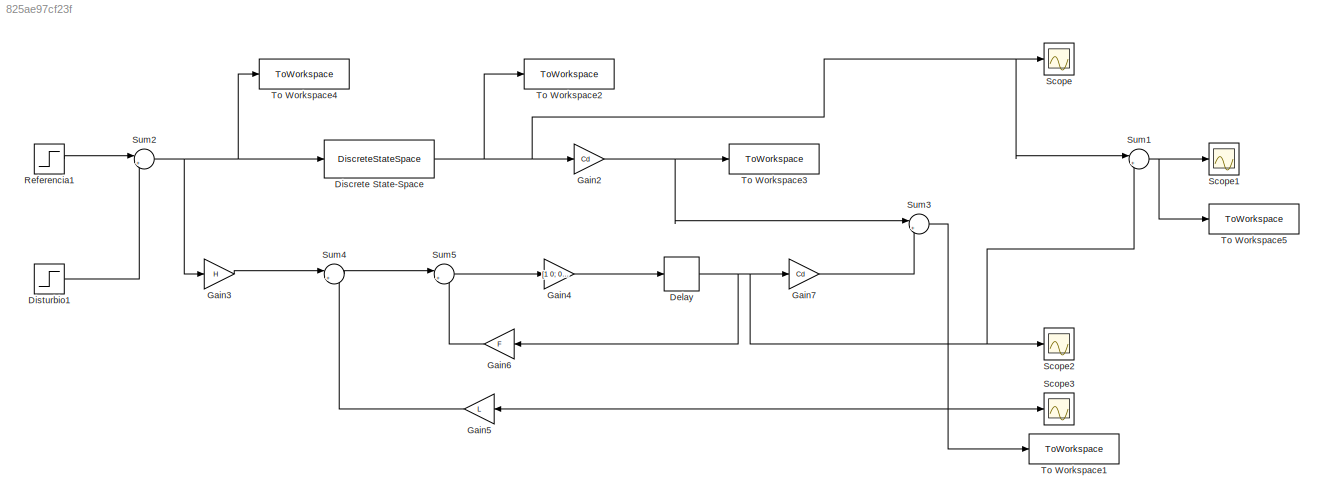
MODEL slx_825ae97cf23f
KIND model
CONFIG AbsTol = auto
CONFIG EnableMultiTasking = off
CONFIG FixedStep = auto
CONFIG MaxStep = auto
CONFIG MinStep = auto
CONFIG RelTol = 1e-3
CONFIG SampleTimeConstraint = Unconstrained
CONFIG SolverName = VariableStepAuto
CONFIG StartTime = 0.0
CONFIG StopTime = 24.00
BLOCK [Delay] Delay
  DelayLength = 1
  InitialCondition = 0
  InputPortMap = u0
  Ports = [1, 1]
BLOCK [DiscreteStateSpace] Discrete State-Space
  A = F
  B = H
  C = [1 0; 0 1]
  D = [0 ; 0]
  InitialCondition = [-0.11 -0.11]
  SampleTime = T0
BLOCK [Step] Disturbio1
  After = R
  SampleTime = 0
  Time = 0
BLOCK [Gain] Gain2
  Gain = Cd
  Multiplication = Matrix(K*u)
BLOCK [Gain] Gain3
  Gain = H
  Multiplication = Matrix(K*u)
BLOCK [Gain] Gain4
  Gain = [1 0; 0 1]
  Multiplication = Matrix(K*u)
BLOCK [Gain] Gain5
  Gain = L
  Multiplication = Matrix(K*u)
BLOCK [Gain] Gain6
  Gain = F
  Multiplication = Matrix(K*u)
BLOCK [Gain] Gain7
  Gain = Cd
  Multiplication = Matrix(K*u)
BLOCK [Step] Referencia1
  After = R
  SampleTime = 0
  Time = 0
BLOCK [Scope] Scope
  Floating = off
  NumInputPorts = 1
  Ports = [1]
  ScopeSpecificationString = Simulink.scopes.TimeScopeBlockCfg('CurrentConfiguration', extmgr.ConfigurationSet(extmgr.Configuration('Core','General UI',true),extmgr.Configuration('Core','Source UI',true),extmgr.Configuration('Sources','WiredSimulink',true),extmgr.Configuration('Visuals','Time Domain',true,'SerializedDisplays',{struct('MinYLimReal','-0.36441','MaxYLimReal','2.17966','YLabelReal','','MinYLimMag','0.00000','MaxY...<+1367ch>
BLOCK [Scope] Scope1
  Floating = off
  NumInputPorts = 1
  Ports = [1]
  ScopeSpecificationString = Simulink.scopes.TimeScopeBlockCfg('CurrentConfiguration', extmgr.ConfigurationSet(extmgr.Configuration('Core','General UI',true),extmgr.Configuration('Core','Source UI',true),extmgr.Configuration('Sources','WiredSimulink',true,'DataLoggingVariableName','ScopeData1'),extmgr.Configuration('Visuals','Time Domain',true,'SerializedDisplays',{struct('MinYLimReal','-0.66648','MaxYLimReal','4.35239','YLab...<+1429ch>
BLOCK [Scope] Scope2
  Floating = off
  NumInputPorts = 1
  Ports = [1]
  ScopeSpecificationString = Simulink.scopes.TimeScopeBlockCfg('CurrentConfiguration', extmgr.ConfigurationSet(extmgr.Configuration('Core','General UI',true),extmgr.Configuration('Core','Source UI',true),extmgr.Configuration('Sources','WiredSimulink',true,'DataLoggingVariableName','ScopeData2'),extmgr.Configuration('Visuals','Time Domain',true,'SerializedDisplays',{struct('MinYLimReal','-0.35432','MaxYLimReal','2.17854','YLab...<+1405ch>
BLOCK [Scope] Scope3
  Floating = off
  NumInputPorts = 1
  Ports = [1]
  ScopeSpecificationString = Simulink.scopes.TimeScopeBlockCfg('CurrentConfiguration', extmgr.ConfigurationSet(extmgr.Configuration('Core','General UI',true),extmgr.Configuration('Core','Source UI',true),extmgr.Configuration('Sources','WiredSimulink',true,'DataLoggingVariableName','ScopeData3'),extmgr.Configuration('Visuals','Time Domain',true,'SerializedDisplays',{struct('MinYLimReal','-0.15343','MaxYLimReal','0.06679','YLab...<+1363ch>
BLOCK [Sum] Sum1
  Inputs = |++
  Ports = [2, 1]
BLOCK [Sum] Sum2
  Inputs = |++
  Ports = [2, 1]
BLOCK [Sum] Sum3
  Inputs = |+-
  Ports = [2, 1]
BLOCK [Sum] Sum4
  Inputs = |++
  Ports = [2, 1]
BLOCK [Sum] Sum5
  Inputs = |++
  Ports = [2, 1]
BLOCK [ToWorkspace] To Workspace1
  FixptAsFi = on
  MaxDataPoints = inf
  Ports = [1]
  SampleTime = -1
  SaveFormat = Timeseries
  VariableName = e_d
BLOCK [ToWorkspace] To Workspace2
  FixptAsFi = on
  MaxDataPoints = inf
  Ports = [1]
  SampleTime = -1
  SaveFormat = Timeseries
  VariableName = x_d
BLOCK [ToWorkspace] To Workspace3
  FixptAsFi = on
  MaxDataPoints = inf
  Ports = [1]
  SampleTime = -1
  SaveFormat = Timeseries
  VariableName = y_d
BLOCK [ToWorkspace] To Workspace4
  FixptAsFi = on
  MaxDataPoints = inf
  Ports = [1]
  SampleTime = -1
  SaveFormat = Timeseries
  VariableName = u_d
BLOCK [ToWorkspace] To Workspace5
  FixptAsFi = on
  MaxDataPoints = inf
  Ports = [1]
  SampleTime = -1
  SaveFormat = Timeseries
  VariableName = xx
NET Delay:1 -> Gain6:1, Gain7:1, Scope2:1, Sum1:2
NET Discrete State-Space:1 -> Gain2:1, Scope:1, Sum1:1, To Workspace2:1
LINE Disturbio1:1 -> Sum2:2
NET Gain2:1 -> Sum3:1, To Workspace3:1
LINE Gain3:1 -> Sum4:1
LINE Gain4:1 -> Delay:1
LINE Gain5:1 -> Sum4:2
LINE Gain6:1 -> Sum5:2
LINE Gain7:1 -> Sum3:2
LINE Referencia1:1 -> Sum2:1
NET Sum1:1 -> Scope1:1, To Workspace5:1
NET Sum2:1 -> Discrete State-Space:1, Gain3:1, To Workspace4:1
NET Sum3:1 -> Gain5:1, Scope3:1, To Workspace1:1
LINE Sum4:1 -> Sum5:1
LINE Sum5:1 -> Gain4:1
note: NET lines group one-source signal fan-out (src -> all destinations, sorted); 1:1 wires keep LINE
